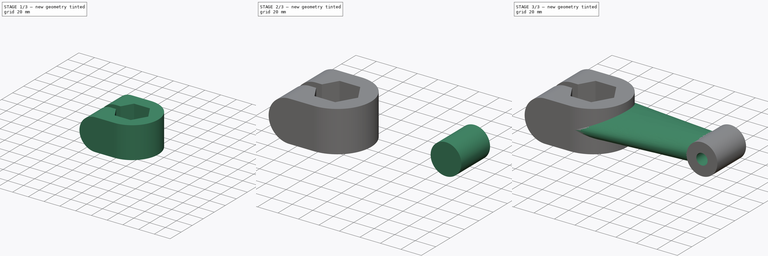
[diagram: build sequence overview — one tinted view per stage of 3, left to right]
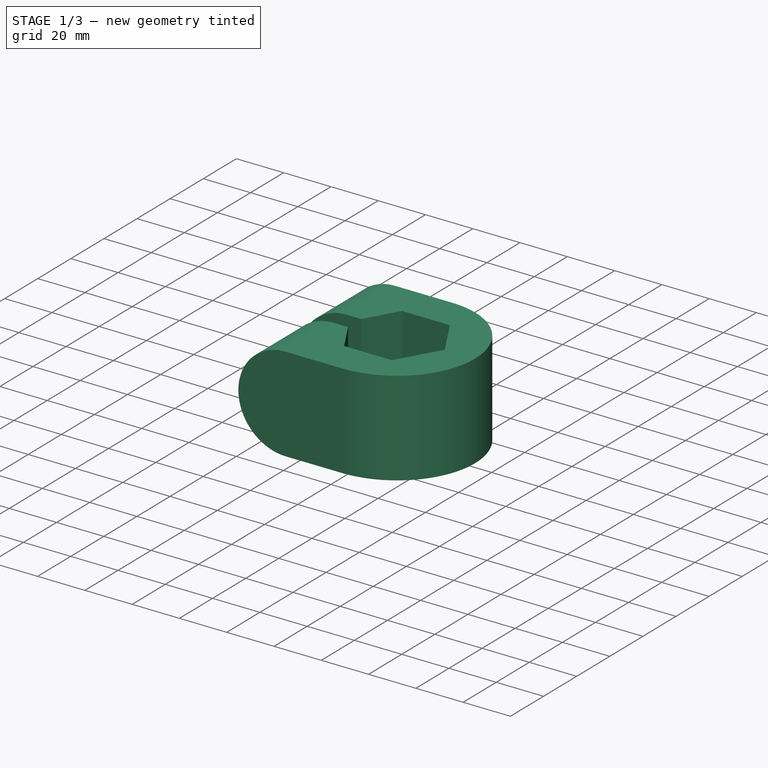
[diagram: stage 1 of 3 — iso view after this stage's code; geometry added in this stage tinted green]
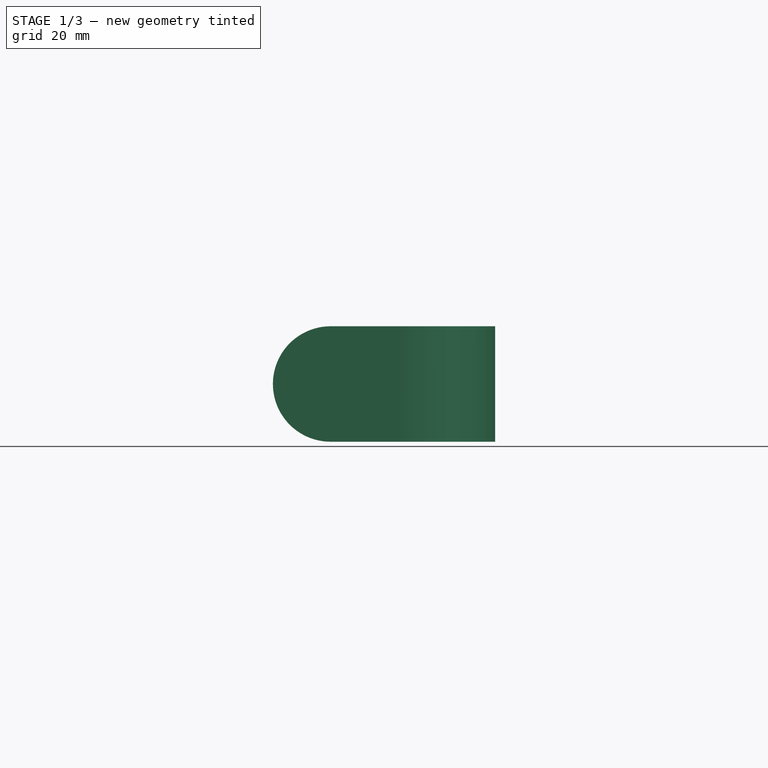
[diagram: stage 1 of 3 — front view after this stage's code; geometry added in this stage tinted green]
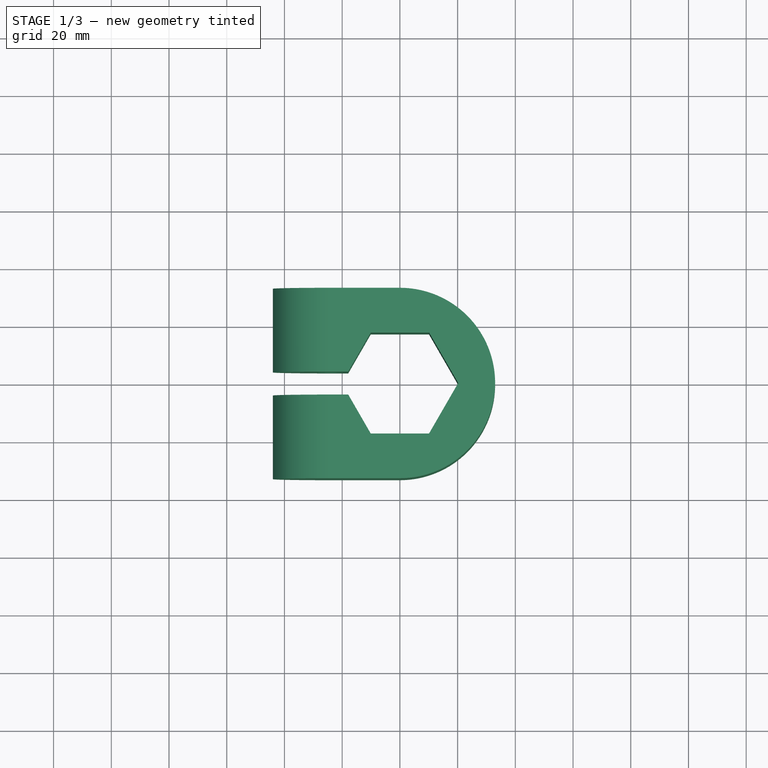
[diagram: stage 1 of 3 — top view after this stage's code; geometry added in this stage tinted green]
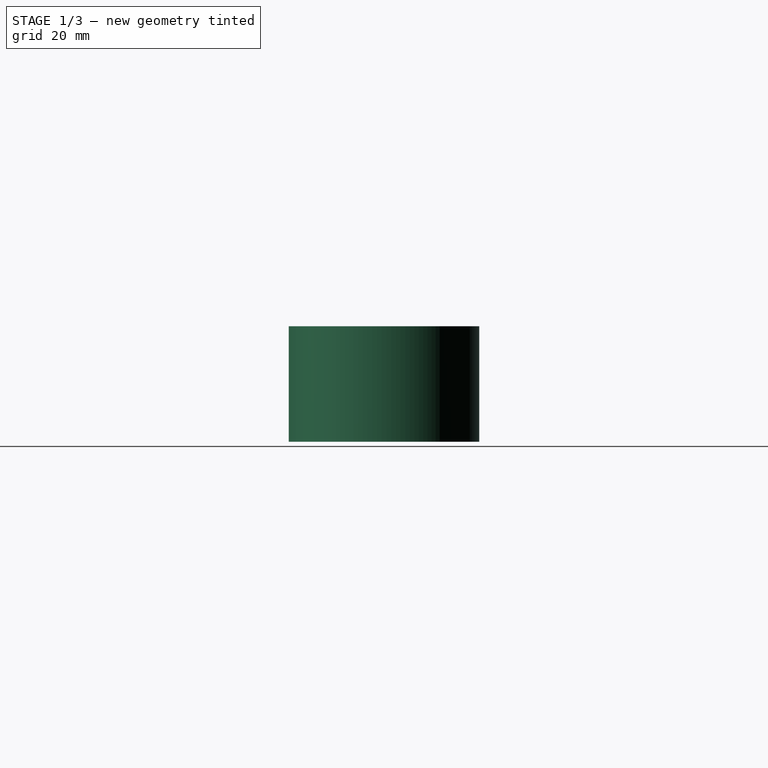
[diagram: stage 1 of 3 — right view after this stage's code; geometry added in this stage tinted green]
FCSTD DOCUMENT  (FreeCAD 1.1R42180 (Git))
Label: 23-T-76-Hex_Arm
License: Creative Commons Attribution-NonCommercial-ShareAlike 4.0
LicenseURL: https://creativecommons.org/licenses/by-nc-sa/4.0/
objects: Sketcher::SketchObject×8, App::Point×3, PartDesign::Pocket×3, PartDesign::Pad×2, PartDesign::Hole×2, Part::LocalCoordinateSystem×2, PartDesign::AdditiveLoft×1, PartDesign::Body×1
note: 41 computed .brp shape members not serialized (recipe doc carries the construction recipe); baked Part::Feature solids carry a one-line shape summary decoded from their .brp

FEATURE [App::Point] Origin001  label="Origine"
  Role = Origin
FEATURE [Sketcher::SketchObject] Sketch
  ArcFitTolerance = 1e-06
  AttachmentSupport = -> [Origin]
  ExternalTypes = [0]
  FullyConstrained = true
  MakeInternals = false
  MapMode = 5
  sketch-geometry (22):
    g0: LineSegment StartX=-44 StartY=33 StartZ=0 EndX=-44 EndY=4 EndZ=0
    g1: LineSegment StartX=-44 StartY=-33 StartZ=0 EndX=-7.1e-15 EndY=-33 EndZ=0
    g2: ArcOfCircle CenterX=0 CenterY=0 CenterZ=0 NormalX=0 NormalY=0 NormalZ=1 AngleXU=0 Radius=33 StartAngle=4.71239 EndAngle=7.85398
    g3: LineSegment StartX=1.01e-14 StartY=33 StartZ=0 EndX=-44 EndY=33 EndZ=0
    g4: LineSegment [constr] StartX=10.1036 StartY=17.5 StartZ=0 EndX=-10.1036 EndY=17.5 EndZ=0
    g5: LineSegment [constr] StartX=-10.1036 StartY=17.5 StartZ=0 EndX=-20.2073 EndY=0 EndZ=0
    g6: LineSegment [constr] StartX=-20.2073 StartY=0 StartZ=0 EndX=-10.1036 EndY=-17.5 EndZ=0
    g7: LineSegment [constr] StartX=-10.1036 StartY=-17.5 StartZ=0 EndX=10.1036 EndY=-17.5 EndZ=0
    g8: LineSegment [constr] StartX=10.1036 StartY=-17.5 StartZ=0 EndX=20.2073 EndY=0 EndZ=0
    g9: LineSegment [constr] StartX=20.2073 StartY=0 StartZ=0 EndX=10.1036 EndY=17.5 EndZ=0
    g10: Circle [constr] CenterX=0 CenterY=0 CenterZ=0 NormalX=0 NormalY=0 NormalZ=1 AngleXU=0 Radius=20.2073
    g11: LineSegment StartX=-44 StartY=-4 StartZ=0 EndX=-17.8979 EndY=-4 EndZ=0
    g12: LineSegment [constr] StartX=-17.8979 StartY=-4 StartZ=0 EndX=-17.8979 EndY=4 EndZ=0
    g13: LineSegment StartX=-17.8979 StartY=4 StartZ=0 EndX=-44 EndY=4 EndZ=0
    g14: LineSegment StartX=-44 StartY=-4 StartZ=0 EndX=-44 EndY=-33 EndZ=0
    g15: LineSegment [constr] StartX=-10.1036 StartY=-17.5 StartZ=0 EndX=-10.1036 EndY=-17.5 EndZ=0
    g16: LineSegment StartX=-17.8979 StartY=4 StartZ=0 EndX=-10.1036 EndY=17.5 EndZ=0
    g17: LineSegment StartX=-10.1036 StartY=17.5 StartZ=0 EndX=10.1036 EndY=17.5 EndZ=0
    g18: LineSegment StartX=10.1036 StartY=17.5 StartZ=0 EndX=20.2073 EndY=0 EndZ=0
    g19: LineSegment StartX=20.2073 StartY=0 StartZ=0 EndX=10.1036 EndY=-17.5 EndZ=0
    g20: LineSegment StartX=10.1036 StartY=-17.5 StartZ=0 EndX=-10.1036 EndY=-17.5 EndZ=0
    g21: LineSegment StartX=-10.1036 StartY=-17.5 StartZ=0 EndX=-17.8979 EndY=-4 EndZ=0
  constraints (56):
    c: Coincident(g14,g1)
    c: Tangent(g1,g2) = -1.5708
    c: Tangent(g2,g3) = -1.5708
    c: Coincident(g3,g0)
    c: Horizontal(g1)
    c: Horizontal(g3)
    c: Coincident(g2,g-1)
    c: DistanceY(g14,g0) = 66
    c: DistanceX(g3,g3) = 44
    c: Coincident(g4,g5)
    c: Coincident(g5,g6)
    c: Coincident(g15,g7)
    c: Coincident(g7,g8)
    c: Coincident(g8,g9)
    c: Coincident(g9,g4)
    c: Equal(g4,g5)
    c: Equal(g4,g7)
    c: Equal(g4,g8)
    c: Equal(g4,g9)
    c: PointOnObject(g4,g10)
    c: PointOnObject(g5,g10)
    c: PointOnObject(g15,g10)
    c: PointOnObject(g7,g10)
    c: PointOnObject(g8,g10)
    c: PointOnObject(g9,g10)
    c: Coincident(g10,g2)
    c: Distance(g7,g4) = 35
    c: Horizontal(g4)
    c: Coincident(g11,g12)
    c: Coincident(g12,g13)
    c: Vertical(g12)
    c: Horizontal(g11)
    c: Horizontal(g13)
    c: Distance(g12,g12) = 8
    c: Vertical(g0)
    c: Vertical(g14)
    c: Coincident(g13,g0)
    c: Coincident(g14,g11)
    c: Symmetric(g11,g0,g-1)
    c: Equal(g4,g6)
    c: PointOnObject(g11,g6)
    c: Coincident(g6,g15)
    c: PointOnObject(g7,g6)
    c: Horizontal(g7)
    c: Coincident(g12,g16)
    c: Coincident(g16,g4)
    c: Coincident(g16,g17)
    c: Coincident(g17,g4)
    c: Coincident(g17,g18)
    c: Coincident(g18,g8)
    c: Coincident(g18,g19)
    c: Coincident(g19,g7)
    c: Coincident(g19,g20)
    c: Coincident(g20,g6)
    c: Coincident(g20,g21)
    c: Coincident(g21,g11)
FEATURE [PartDesign::Pad] Pad
  Direction = (0,0,1)
  Length = 40
  Length2 = 10
  Midplane = true
  Profile = -> Sketch
  ReferenceAxis = -> Sketch [N_Axis]
  Refine = true
  Suppressed = false
  Type = 0
FEATURE [Sketcher::SketchObject] Sketch001
  ArcFitTolerance = 1e-06
  AttachmentSupport = -> [Pad]
  ExternalGeometry = -> [Pad]
  ExternalTypes = [0]
  FullyConstrained = true
  MakeInternals = false
  MapMode = 5
  Placement = pos=(0,33,0) rot=(0,0.707107,0.707107;3.14159rad)
  sketch-geometry (5):
    g0: Circle CenterX=24 CenterY=0 CenterZ=0 NormalX=0 NormalY=0 NormalZ=1 AngleXU=0 Radius=5
    g1: ArcOfCircle CenterX=24 CenterY=0 CenterZ=0 NormalX=0 NormalY=0 NormalZ=1 AngleXU=0 Radius=20 StartAngle=4.71239 EndAngle=7.85398
    g2: LineSegment StartX=24 StartY=20 StartZ=0 EndX=45 EndY=20 EndZ=0
    g3: LineSegment StartX=45 StartY=20 StartZ=0 EndX=45 EndY=-20 EndZ=0
    g4: LineSegment StartX=45 StartY=-20 StartZ=0 EndX=24 EndY=-20 EndZ=0
  constraints (13):
    c: Diameter(g0) = 10
    c: Coincident(g1,g0)
    c: Radius(g1) = 20
    c: Tangent(g1,g-3)
    c: Coincident(g2,g3)
    c: Vertical(g3)
    c: Coincident(g3,g4)
    c: Horizontal(g4)
    c: Horizontal(g2)
    c: PointOnObject(g-3,g2)
    c: Distance(g-3,g2) = 1
    c: Tangent(g1,g2) = 1.5708
    c: Tangent(g4,g1) = 1.5708
FEATURE [Sketcher::SketchObject] Sketch002
  ArcFitTolerance = 1e-06
  AttachmentSupport = -> [Origin]
  ExternalTypes = [0]
  FullyConstrained = true
  MakeInternals = false
  MapMode = 5
  Placement = pos=(0,0,0) rot=(1,0,0;1.5708rad)
FEATURE [PartDesign::Pocket] Pocket001
  BaseFeature = -> Pad
  Direction = (0,-1,2e-16)
  Length = 5
  Length2 = 5
  Profile = -> Sketch001 [Edge5,Edge4,Edge2,Edge3]
  ReferenceAxis = -> Sketch001 [N_Axis]
  Refine = true
  Suppressed = false
  Type = 1
FEATURE [PartDesign::Pocket] Pocket
  BaseFeature = -> Pocket001
  Direction = (0,-1,0)
  Length = 5
  Length2 = 5
  Profile = -> Sketch001 [Edge1]
  ReferenceAxis = -> Sketch001 [N_Axis]
  Refine = true
  Suppressed = false
  Type = 2
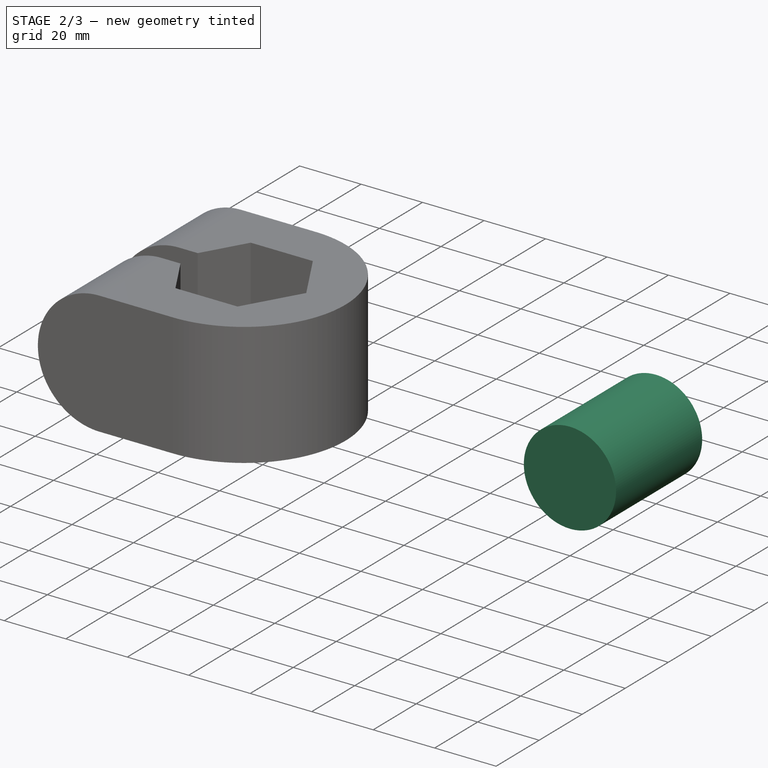
[diagram: stage 2 of 3 — iso view after this stage's code; geometry added in this stage tinted green]
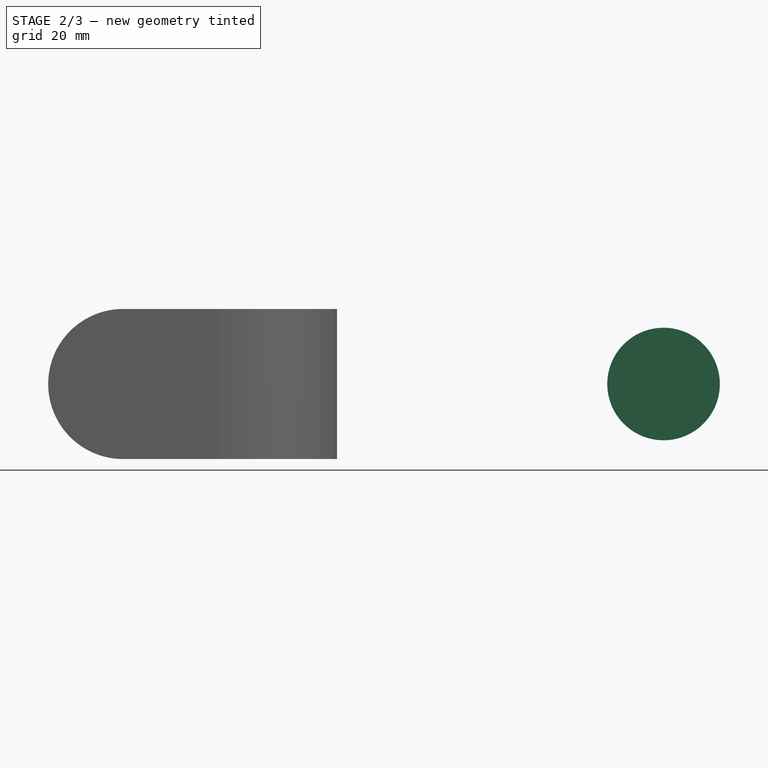
[diagram: stage 2 of 3 — front view after this stage's code; geometry added in this stage tinted green]
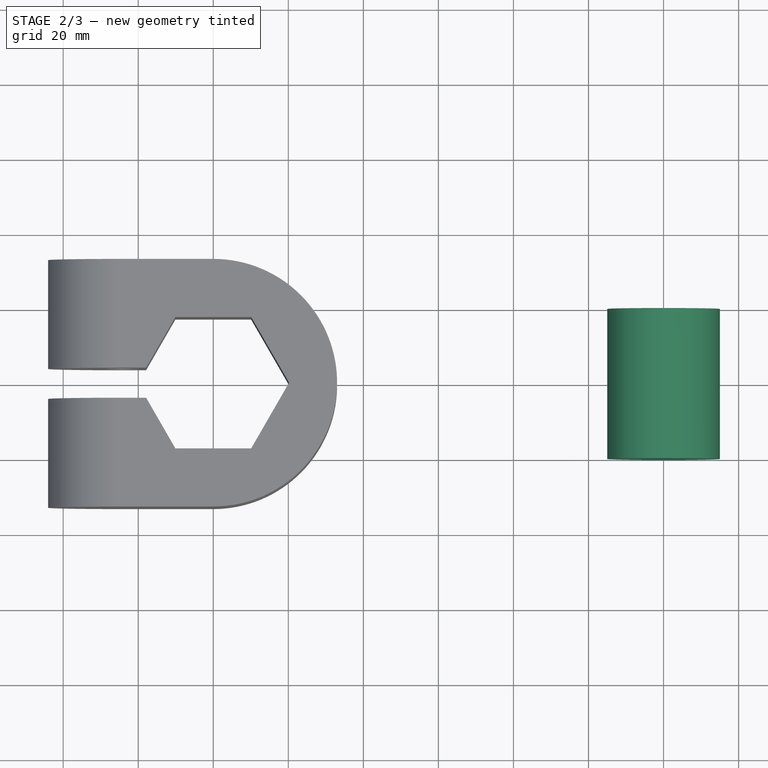
[diagram: stage 2 of 3 — top view after this stage's code; geometry added in this stage tinted green]
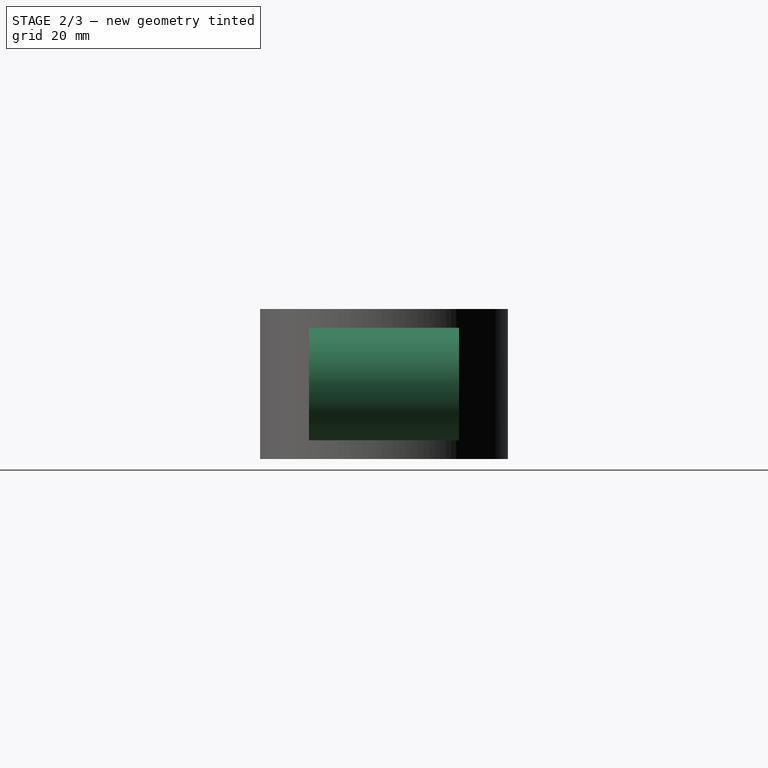
[diagram: stage 2 of 3 — right view after this stage's code; geometry added in this stage tinted green]
FEATURE [PartDesign::Hole] Hole001
  BaseFeature = -> Pocket
  BaseProfileType = 7
  CustomThreadClearance = 0
  Depth = 56
  DepthType = 0
  Diameter = 7
  DrillForDepth = false
  DrillPoint = 1
  DrillPointAngle = 110
  HoleCutCountersinkAngle = 90
  HoleCutCustomValues = false
  HoleCutDepth = 8
  HoleCutDiameter = 18
  HoleCutType = 1
  ModelThread = false
  Profile = -> Pocket [Edge45]
  Refine = true
  Suppressed = false
  Tapered = false
  TaperedAngle = 90
  ThreadClass = 0
  ThreadDepth = 56
  ThreadDepthType = 0
  ThreadDiameter = 7
  ThreadDirection = 0
  ThreadFit = 0
  ThreadSize = 0
  ThreadType = 0
  Threaded = false
  UseCustomThreadClearance = false
FEATURE [Sketcher::SketchObject] Sketch003
  ArcFitTolerance = 1e-06
  AttachmentSupport = -> [Origin]
  ExternalTypes = [0]
  FullyConstrained = true
  MakeInternals = false
  MapMode = 5
  Placement = pos=(0,0,0) rot=(1,0,0;1.5708rad)
  sketch-geometry (1):
    g0: Circle CenterX=120 CenterY=0 CenterZ=0 NormalX=0 NormalY=0 NormalZ=1 AngleXU=0 Radius=15
  constraints (3):
    c: Diameter(g0) = 30
    c: PointOnObject(g0,g-1)
    c: Distance(g0,g-2) = 120
FEATURE [PartDesign::Pad] Pad001
  BaseFeature = -> Hole001
  Direction = (0,-1,0)
  Length = 40
  Length2 = 10
  Midplane = true
  Profile = -> Sketch003
  ReferenceAxis = -> Sketch003 [N_Axis]
  Refine = true
  Suppressed = false
  Type = 0
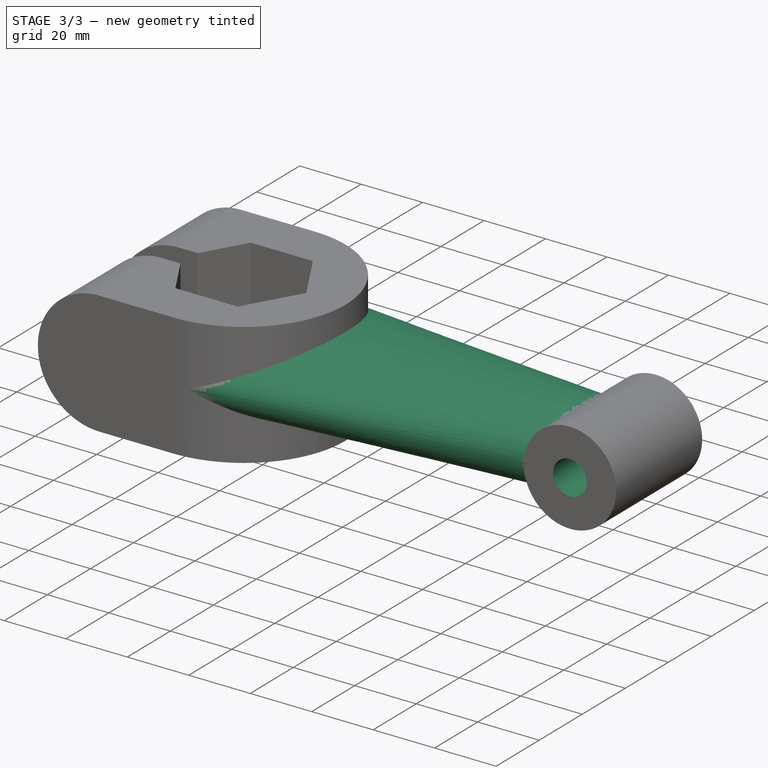
[diagram: stage 3 of 3 — iso view after this stage's code; geometry added in this stage tinted green]
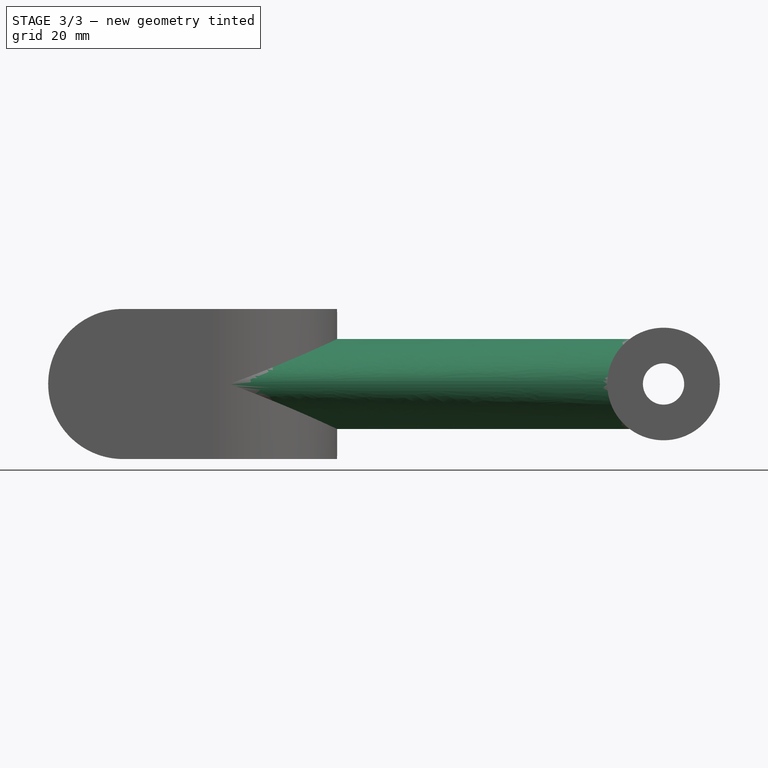
[diagram: stage 3 of 3 — front view after this stage's code; geometry added in this stage tinted green]
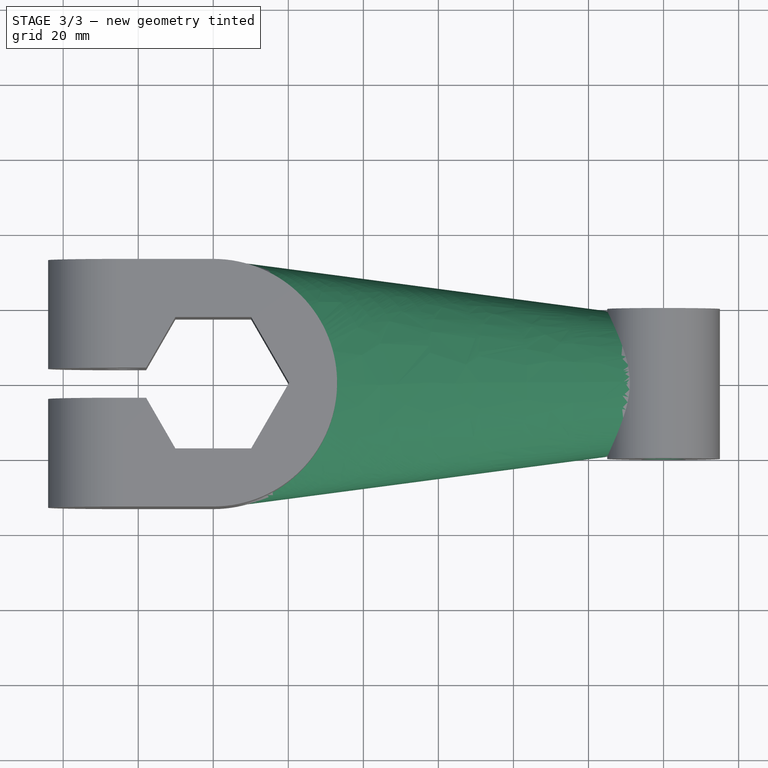
[diagram: stage 3 of 3 — top view after this stage's code; geometry added in this stage tinted green]
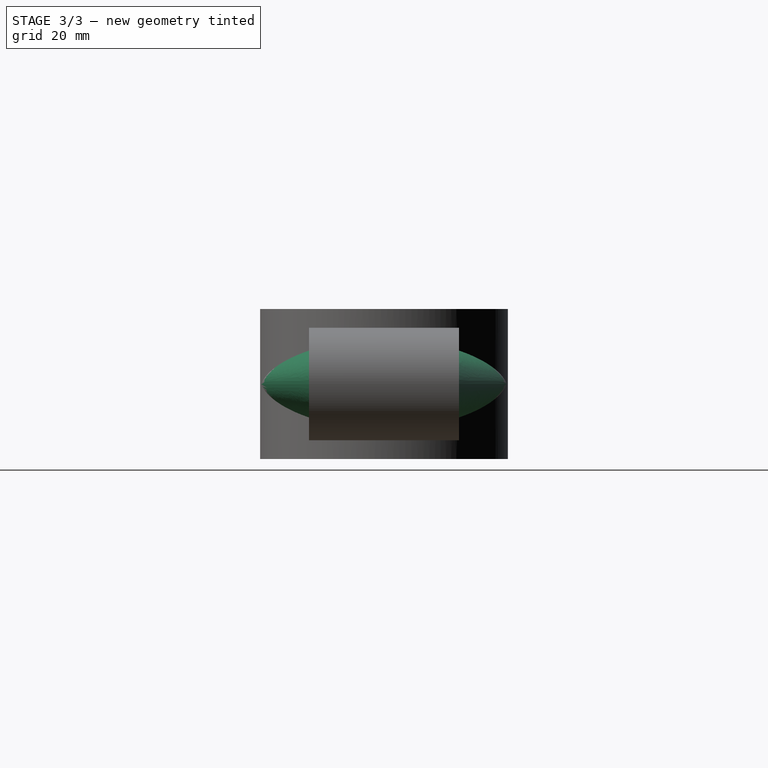
[diagram: stage 3 of 3 — right view after this stage's code; geometry added in this stage tinted green]
FEATURE [Sketcher::SketchObject] Sketch004
  ArcFitTolerance = 1e-06
  AttachmentSupport = -> [Origin]
  ExternalGeometry = -> [Pad001]
  ExternalTypes = [0,0]
  FullyConstrained = true
  MakeInternals = false
  MapMode = 5
  sketch-geometry (6):
    g0: LineSegment StartX=4.30742 StartY=32.7177 StartZ=0 EndX=4.30742 EndY=-32.7177 EndZ=0
    g1: LineSegment StartX=4.30742 StartY=-32.7177 StartZ=0 EndX=120 EndY=-17.4865 EndZ=0
    g2: LineSegment StartX=120 StartY=-17.4865 StartZ=0 EndX=120 EndY=17.4865 EndZ=0
    g3: LineSegment StartX=120 StartY=17.4865 StartZ=0 EndX=4.30742 EndY=32.7177 EndZ=0
    g4: LineSegment [constr] StartX=120 StartY=20 StartZ=0 EndX=120 EndY=17.4865 EndZ=0
    g5: GeomPoint X=120 Y=0 Z=0
  constraints (15):
    c: Vertical(g0)
    c: Coincident(g0,g1)
    c: Coincident(g1,g2)
    c: Coincident(g2,g3)
    c: Coincident(g3,g0)
    c: Tangent(g3,g-4)
    c: Tangent(g1,g-4)
    c: Angle(g3,g1) = 0.261799
    c: Symmetric(g1,g2,g-1)
    c: Symmetric(g-3,g-3,g4)
    c: Coincident(g4,g2)
    c: Vertical(g4)
    c: PointOnObject(g0,g-4)
    c: PointOnObject(g5,g-1)
    c: PointOnObject(g5,g2)
FEATURE [Sketcher::SketchObject] Sketch005
  ArcFitTolerance = 1e-06
  AttachmentSupport = -> [Origin]
  ExternalTypes = [0]
  FullyConstrained = true
  MakeInternals = false
  MapMode = 5
  Placement = pos=(0,0,0) rot=(0.57735,0.57735,0.57735;2.0944rad)
FEATURE [App::Point] Origin002  label="Origine002"
  Role = Origin
FEATURE [Part::LocalCoordinateSystem] LCS
  AttacherType = Attacher::AttachEngine3D
  AttachmentSupport = -> [Sketch004]
  MapMode = 7
  OriginFeatures = -> [X_Axis001,Y_Axis001,Z_Axis001,XY_Plane001,XZ_Plane001,YZ_Plane001,Origin002]
  Placement = pos=(4.30742,0,0) rot=(0,0.707107,0.707107;3.14159rad)
FEATURE [Sketcher::SketchObject] Sketch006
  ArcFitTolerance = 1e-06
  AttachmentSupport = -> [LCS]
  ExternalGeometry = -> [Sketch004]
  ExternalTypes = [0]
  FullyConstrained = false
  MakeInternals = false
  MapMode = 5
  Placement = pos=(4.30742,0,0) rot=(0,-1,0;1.5708rad)
  sketch-geometry (5):
    g0: Ellipse CenterX=0 CenterY=0 CenterZ=0 NormalX=0 NormalY=0 NormalZ=1 MajorRadius=32.7177 MinorRadius=12 AngleXU=1.5708
    g1: LineSegment [constr] StartX=0 StartY=32.7177 StartZ=0 EndX=0 EndY=-32.7177 EndZ=0
    g2: LineSegment [constr] StartX=-12 StartY=0 StartZ=0 EndX=12 EndY=0 EndZ=0
    g3: GeomPoint [constr] X=0 Y=30.4376 Z=0
    g4: GeomPoint [constr] X=0 Y=-30.4376 Z=0
  constraints (4):
    c: InternalAlignment(g1-g4 -> g0) x4
    c: Distance(g0,g2) = 12
    c: Coincident(g0,g-1)
    c: PointOnObject(g-3,g0)
FEATURE [App::Point] Origin003  label="Origine003"
  Role = Origin
FEATURE [Part::LocalCoordinateSystem] LCS001
  AttacherType = Attacher::AttachEngine3D
  AttachmentSupport = -> [Sketch004]
  MapMode = 7
  OriginFeatures = -> [X_Axis002,Y_Axis002,Z_Axis002,XY_Plane002,XZ_Plane002,YZ_Plane002,Origin003]
  Placement = pos=(120,0,0) rot=(1,0,0;1.5708rad)
FEATURE [Sketcher::SketchObject] Sketch007
  ArcFitTolerance = 1e-06
  AttachmentSupport = -> [LCS001]
  ExternalGeometry = -> [Sketch004]
  ExternalTypes = [0]
  FullyConstrained = false
  MakeInternals = false
  MapMode = 5
  Placement = pos=(120,0,0) rot=(0.707107,0,0.707107;3.14159rad)
  sketch-geometry (5):
    g0: Ellipse CenterX=0 CenterY=0 CenterZ=0 NormalX=0 NormalY=0 NormalZ=1 MajorRadius=17.4135 MinorRadius=12 AngleXU=1.5734
    g1: LineSegment [constr] StartX=-0.045291 StartY=17.4134 StartZ=0 EndX=0.045291 EndY=-17.4134 EndZ=0
    g2: LineSegment [constr] StartX=-12 StartY=-0.031211 StartZ=0 EndX=12 EndY=0.031211 EndZ=0
    g3: GeomPoint [constr] X=-0.03282 Y=12.6186 Z=0
    g4: GeomPoint [constr] X=0.03282 Y=-12.6186 Z=0
  constraints (3):
    c: InternalAlignment(g1-g4 -> g0) x4
    c: Distance(g0,g2) = 12
    c: Coincident(g0,g-1)
FEATURE [PartDesign::AdditiveLoft] AdditiveLoft
  BaseFeature = -> Pad001
  Closed = false
  Profile = -> Sketch006
  Refine = true
  Ruled = false
  Sections = -> [Sketch007]
  Suppressed = false
FEATURE [PartDesign::Pocket] Pocket002
  BaseFeature = -> AdditiveLoft
  Direction = (0,-0.02,-100)
  Length = 5
  Length2 = 5
  Midplane = true
  Profile = -> AdditiveLoft [Face20]
  Refine = true
  Suppressed = false
  Type = 1
FEATURE [PartDesign::Hole] Hole
  BaseFeature = -> Pocket002
  BaseProfileType = 7
  CustomThreadClearance = 0
  Depth = 393.755
  DepthType = 1
  Diameter = 11
  DrillForDepth = false
  DrillPoint = 1
  DrillPointAngle = 118
  HoleCutCountersinkAngle = 90
  HoleCutCustomValues = false
  HoleCutDepth = 8
  HoleCutDiameter = 20
  HoleCutType = 1
  ModelThread = false
  Profile = -> Pocket002 [Face34]
  Refine = true
  Suppressed = false
  Tapered = false
  TaperedAngle = 90
  ThreadClass = 0
  ThreadDepth = 393.755
  ThreadDepthType = 0
  ThreadDiameter = 11
  ThreadDirection = 0
  ThreadFit = 0
  ThreadSize = 0
  ThreadType = 0
  Threaded = false
  UseCustomThreadClearance = false
FEATURE [PartDesign::Body] Body
  AllowCompound = true
  Group = -> [Sketch,Pad,Sketch001,Sketch002,Pocket001,Pocket,Hole001,Sketch003,Pad001,Sketch004,Sketch005,LCS,Sketch006,LCS001,Sketch007,AdditiveLoft,Pocket002,Hole]
  Origin = -> Origin
  Tip = -> Hole
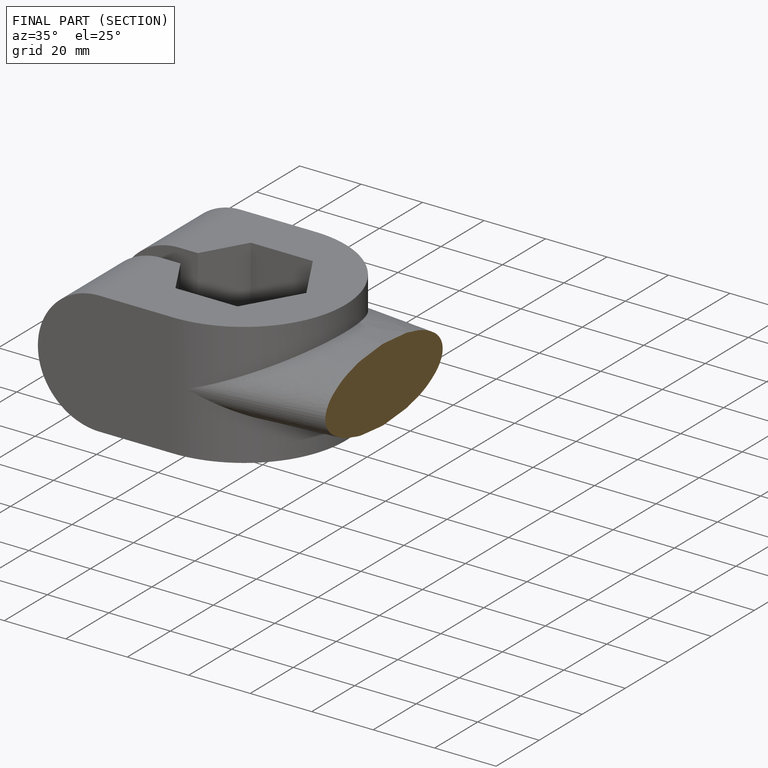
[diagram: finished part — half-section view (interior)]
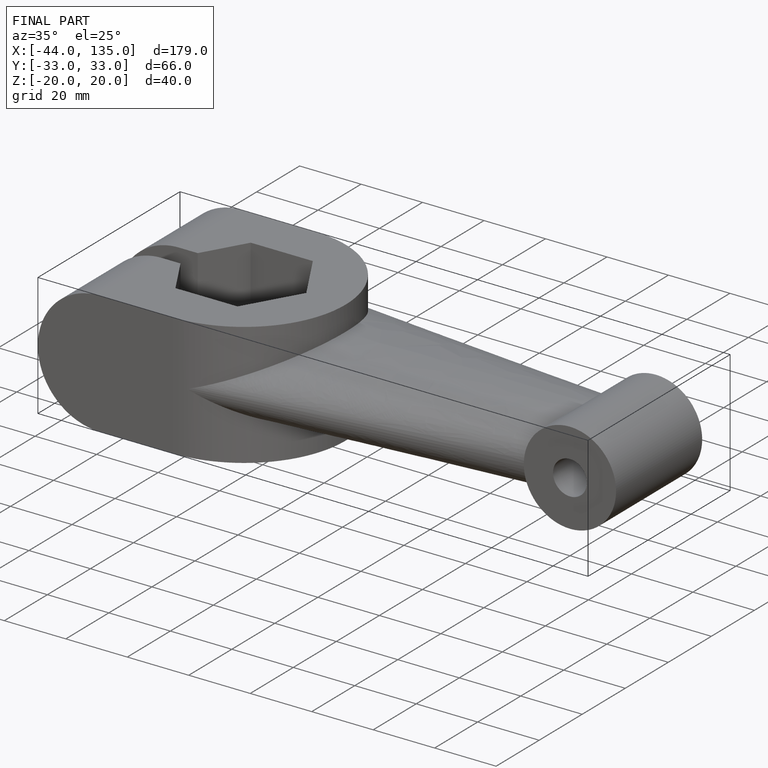
[diagram: finished part — iso view with bounding-box wireframe]
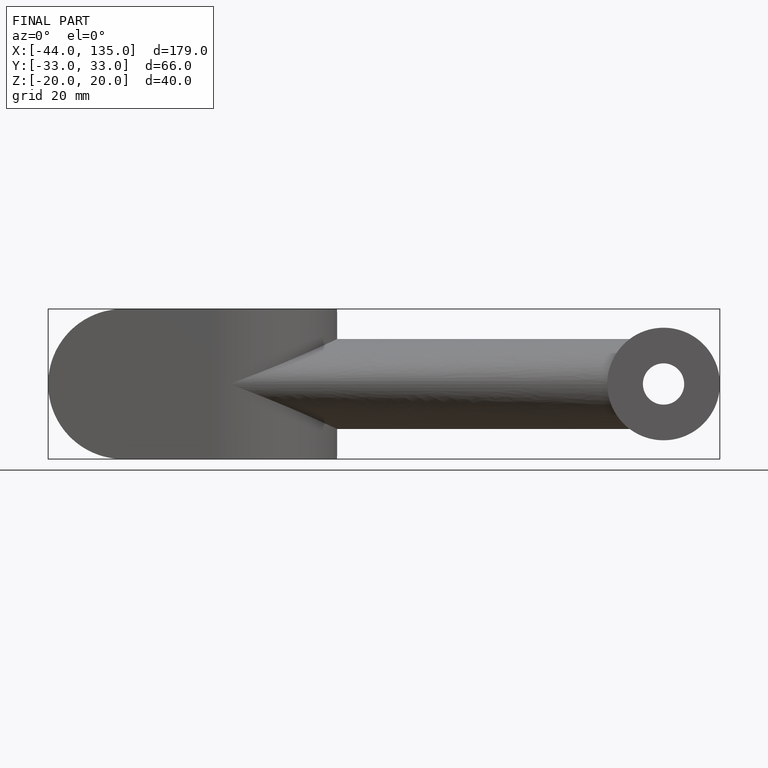
[diagram: finished part — front view with bounding-box wireframe]
